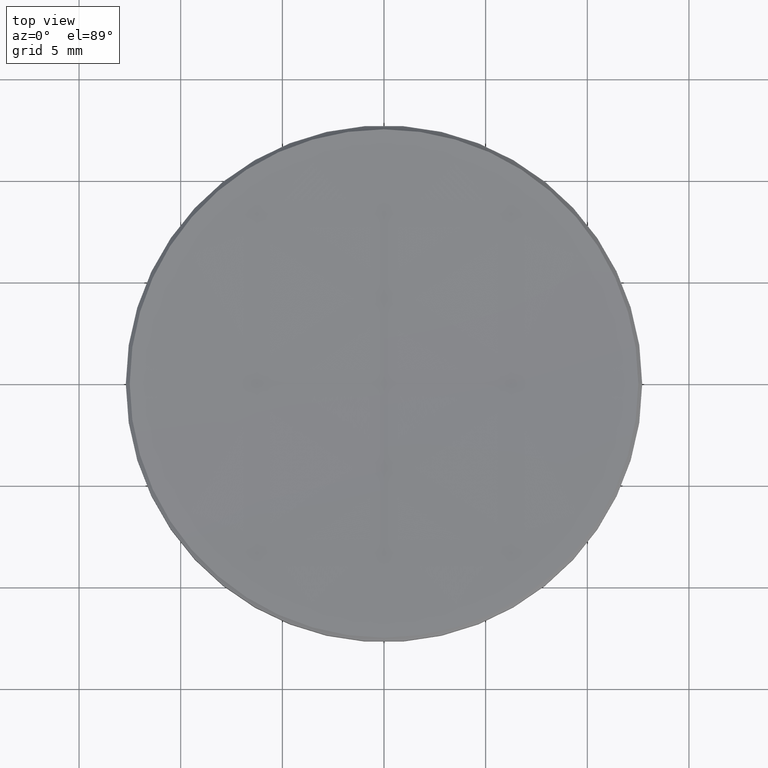
[diagram: clean part render]
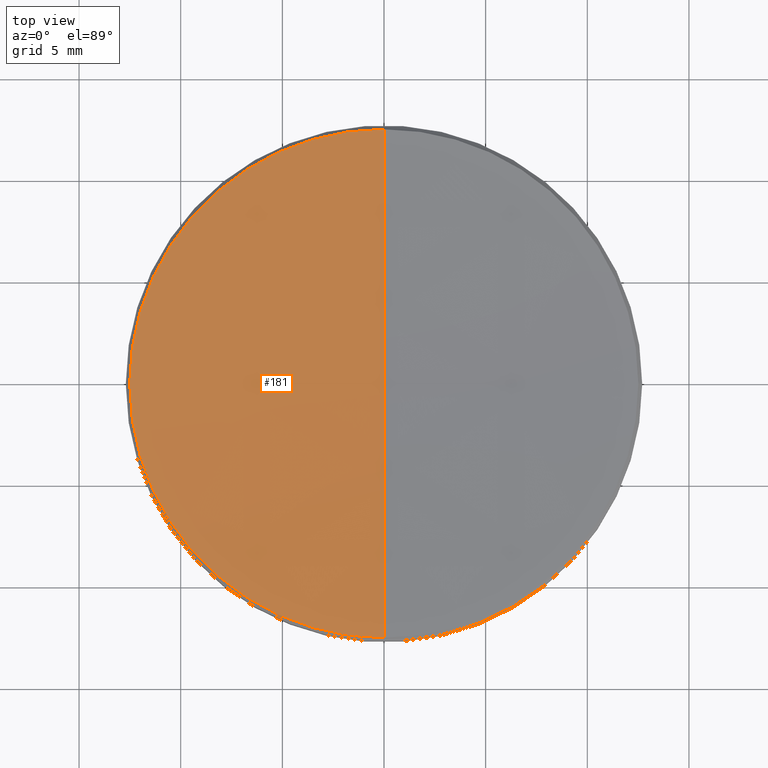
[diagram: same view with one face highlighted and labeled with its STEP entity id]
A machine part, top view. The second image highlights one B-rep face of the part: STEP entity #181.
In plain terms, the highlighted spherical surface has radius 288.2 mm.
Its self-contained STEP definition (entity closure, byte-faithful):
#4 = DIRECTION ( 'NONE',  ( 0.000000000000000000, 1.000000000000000000, 0.000000000000000000 ) ) ;
#6 = DIRECTION ( 'NONE',  ( 1.000000000000000000, 0.000000000000000000, 0.000000000000000000 ) ) ;
#15 = CIRCLE ( 'NONE', #109, 12.50838802109486103 ) ;
#23 = EDGE_CURVE ( 'NONE', #284, #35, #49, .T. ) ;
#25 = AXIS2_PLACEMENT_3D ( 'NONE', #213, #59, #4 ) ;
#35 = VERTEX_POINT ( 'NONE', #64 ) ;
#37 = DIRECTION ( 'NONE',  ( 0.000000000000000000, 0.000000000000000000, -1.000000000000000000 ) ) ;
#47 = CARTESIAN_POINT ( 'NONE',  ( 0.000000000000000000, 1.764716037571336072E-14, 5.720040983603680296 ) ) ;
#49 = CIRCLE ( 'NONE', #183, 12.50838802109486103 ) ;
#56 = CIRCLE ( 'NONE', #89, 288.1999999999999886 ) ;
#57 = FACE_OUTER_BOUND ( 'NONE', #216, .T. ) ;
#59 = DIRECTION ( 'NONE',  ( -1.000000000000000000, 0.000000000000000000, 0.000000000000000000 ) ) ;
#64 = CARTESIAN_POINT ( 'NONE',  ( -1.531835735252623078E-15, -12.50838802109430148, 5.991611978905075908 ) ) ;
#88 = VERTEX_POINT ( 'NONE', #47 ) ;
#89 = AXIS2_PLACEMENT_3D ( 'NONE', #158, #259, #313 ) ;
#109 = AXIS2_PLACEMENT_3D ( 'NONE', #188, #310, #6 ) ;
#117 = ORIENTED_EDGE ( 'NONE', *, *, #178, .T. ) ;
#121 = VERTEX_POINT ( 'NONE', #192 ) ;
#141 = CARTESIAN_POINT ( 'NONE',  ( 0.000000000000000000, 0.000000000000000000, 5.991611978905075908 ) ) ;
#154 = ORIENTED_EDGE ( 'NONE', *, *, #220, .F. ) ;
#155 = CIRCLE ( 'NONE', #264, 288.1999999999999886 ) ;
#158 = CARTESIAN_POINT ( 'NONE',  ( 0.000000000000000000, 0.000000000000000000, 293.9200409836037124 ) ) ;
#160 = CARTESIAN_POINT ( 'NONE',  ( -12.50838802109486103, 0.000000000000000000, 5.991611978905075908 ) ) ;
#165 = DIRECTION ( 'NONE',  ( 1.000000000000000000, 0.000000000000000000, 0.000000000000000000 ) ) ;
#169 = DIRECTION ( 'NONE',  ( -0.000000000000000000, -0.000000000000000000, 1.000000000000000000 ) ) ;
#178 = EDGE_CURVE ( 'NONE', #121, #284, #15, .T. ) ;
#181 = ADVANCED_FACE ( 'NONE', ( #57 ), #316, .F. ) ;
#183 = AXIS2_PLACEMENT_3D ( 'NONE', #141, #169, #240 ) ;
#188 = CARTESIAN_POINT ( 'NONE',  ( 0.000000000000000000, 0.000000000000000000, 5.991611978905075908 ) ) ;
#192 = CARTESIAN_POINT ( 'NONE',  ( 0.000000000000000000, 12.50838802109430148, 5.991611978905075908 ) ) ;
#212 = EDGE_CURVE ( 'NONE', #88, #121, #155, .T. ) ;
#213 = CARTESIAN_POINT ( 'NONE',  ( 0.000000000000000000, 0.000000000000000000, 293.9200409836037124 ) ) ;
#216 = EDGE_LOOP ( 'NONE', ( #154, #219, #117, #309 ) ) ;
#219 = ORIENTED_EDGE ( 'NONE', *, *, #212, .T. ) ;
#220 = EDGE_CURVE ( 'NONE', #88, #35, #56, .T. ) ;
#231 = CARTESIAN_POINT ( 'NONE',  ( 0.000000000000000000, 0.000000000000000000, 293.9200409836037124 ) ) ;
#240 = DIRECTION ( 'NONE',  ( 1.000000000000000000, 0.000000000000000000, 0.000000000000000000 ) ) ;
#259 = DIRECTION ( 'NONE',  ( -1.000000000000000000, 1.224646799147353207E-16, 0.000000000000000000 ) ) ;
#264 = AXIS2_PLACEMENT_3D ( 'NONE', #231, #165, #37 ) ;
#284 = VERTEX_POINT ( 'NONE', #160 ) ;
#309 = ORIENTED_EDGE ( 'NONE', *, *, #23, .T. ) ;
#310 = DIRECTION ( 'NONE',  ( -0.000000000000000000, -0.000000000000000000, 1.000000000000000000 ) ) ;
#313 = DIRECTION ( 'NONE',  ( -1.224646799147353207E-16, -1.000000000000000000, 0.000000000000000000 ) ) ;
#316 = SPHERICAL_SURFACE ( 'NONE', #25, 288.1999999999999886 ) ;